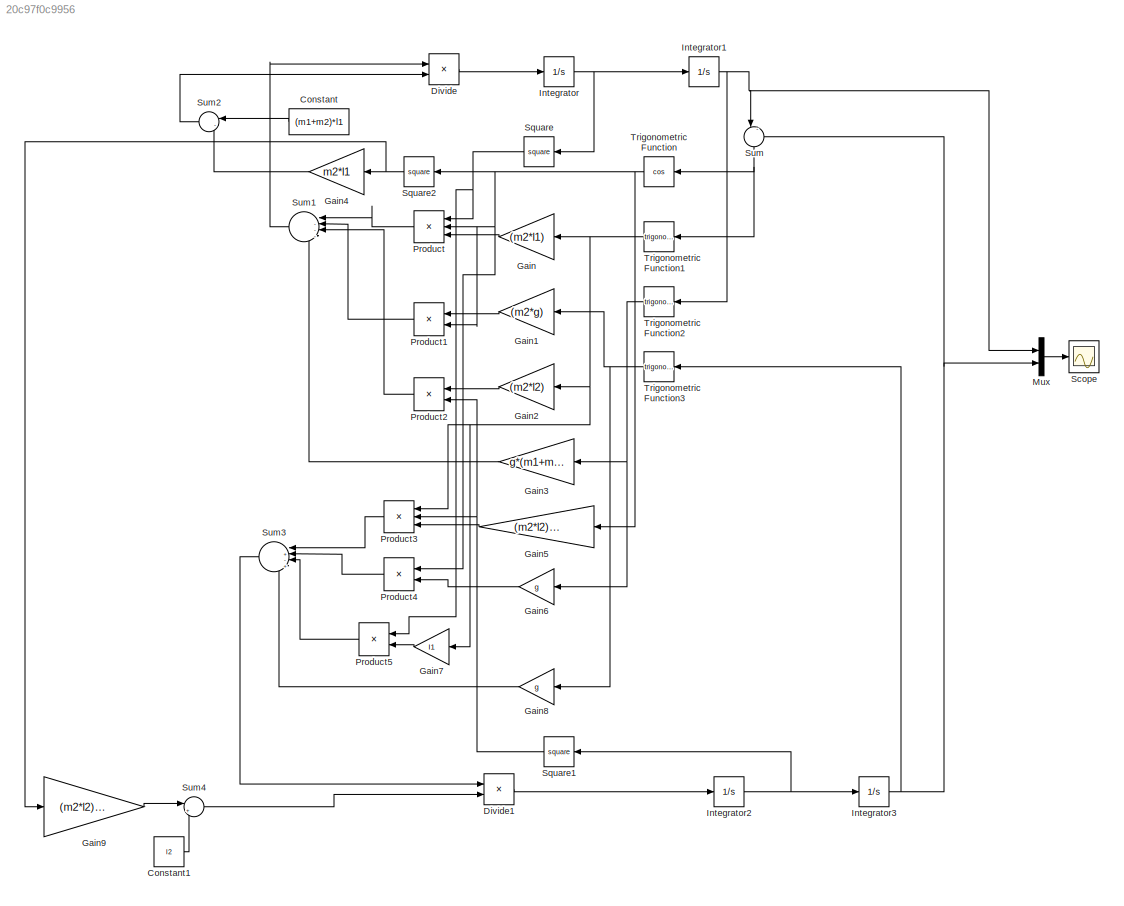
MODEL slx_20c97f0c9956
KIND model
CONFIG AbsTol = auto
CONFIG EnableMultiTasking = off
CONFIG FixedStep = auto
CONFIG MaxStep = auto
CONFIG MinStep = auto
CONFIG RelTol = 1e-3
CONFIG SampleTimeConstraint = Unconstrained
CONFIG SolverName = ode23
CONFIG StartTime = 0.0
CONFIG StopTime = 50
BLOCK [Constant] Constant
  NameLocation = top
  Value = (m1+m2)*l1
BLOCK [Constant] Constant1
  Value = l2
BLOCK [Product] Divide
  Inputs = */
BLOCK [Product] Divide1
  Inputs = */
BLOCK [Gain] Gain
  Gain = (m2*l1)
  NameLocation = top
BLOCK [Gain] Gain1
  Gain = (m2*g)
  NameLocation = top
BLOCK [Gain] Gain2
  Gain = (m2*l2)
  NameLocation = top
BLOCK [Gain] Gain3
  Gain = g*(m1+m2)
  NameLocation = top
BLOCK [Gain] Gain4
  Gain = m2*l1
  NameLocation = top
BLOCK [Gain] Gain5
  Gain = (m2*l2)/(m1+m2)
  NameLocation = top
BLOCK [Gain] Gain6
  Gain = g
  NameLocation = top
BLOCK [Gain] Gain7
  Gain = l1
  NameLocation = top
BLOCK [Gain] Gain8
  Gain = g
  NameLocation = top
BLOCK [Gain] Gain9
  Gain = (m2*l2)/(m1+m2)
BLOCK [Integrator] Integrator
BLOCK [Integrator] Integrator1
BLOCK [Integrator] Integrator2
BLOCK [Integrator] Integrator3
  InitialCondition = 0.610865
BLOCK [Mux] Mux
  DisplayOption = bar
  Inputs = 2
BLOCK [Product] Product
  Inputs = 3
  NameLocation = top
BLOCK [Product] Product1
  NameLocation = top
BLOCK [Product] Product2
  NameLocation = top
BLOCK [Product] Product3
  Inputs = 3
  NameLocation = top
BLOCK [Product] Product4
  NameLocation = top
BLOCK [Product] Product5
  NameLocation = top
BLOCK [Scope] Scope
  Floating = off
  NumInputPorts = 1
  ScopeSpecificationString = Simulink.scopes.TimeScopeBlockCfg('CurrentConfiguration', extmgr.ConfigurationSet(extmgr.Configuration('Core','General UI',true),extmgr.Configuration('Core','Source UI',true),extmgr.Configuration('Sources','WiredSimulink',true),extmgr.Configuration('Visuals','Time Domain',true,'SerializedDisplays',{struct('MinYLimReal','-0.73519','MaxYLimReal','0.76043','YLabelReal','','MinYLimMag','0.00000','MaxY...<+1378ch>
BLOCK [Math] Square
  NameLocation = top
  Operator = square
BLOCK [Math] Square1
  NameLocation = top
  Operator = square
BLOCK [Math] Square2
  NameLocation = top
  Operator = square
BLOCK [Sum] Sum
  Inputs = |-+
  NameLocation = left
BLOCK [Sum] Sum1
  Inputs = |---+
  NameLocation = top
BLOCK [Sum] Sum2
  Inputs = |-+
  NameLocation = top
BLOCK [Sum] Sum3
  Inputs = |+-++
  NameLocation = top
BLOCK [Sum] Sum4
  Inputs = |+-
BLOCK [Trigonometry] Trigonometric Function
  NameLocation = top
  Operator = cos
BLOCK [Trigonometry] Trigonometric Function1
  NameLocation = top
BLOCK [Trigonometry] Trigonometric Function2
  NameLocation = top
BLOCK [Trigonometry] Trigonometric Function3
  NameLocation = top
LINE Constant1:1 -> Sum4:2
LINE Constant:1 -> Sum2:1
LINE Divide1:1 -> Integrator2:1
LINE Divide:1 -> Integrator:1
LINE Gain1:1 -> Product1:1
LINE Gain2:1 -> Product2:1
LINE Gain3:1 -> Sum1:4
LINE Gain4:1 -> Sum2:2
LINE Gain5:1 -> Product3:3
LINE Gain6:1 -> Product4:2
LINE Gain7:1 -> Product5:2
LINE Gain8:1 -> Sum3:4
LINE Gain9:1 -> Sum4:1
LINE Gain:1 -> Product:3
NET Integrator1:1 -> Mux:1, Sum:1, Trigonometric Function2:1
NET Integrator2:1 -> Integrator3:1, Square1:1
NET Integrator3:1 -> Mux:2, Sum:2, Trigonometric Function3:1
NET Integrator:1 -> Integrator1:1, Square:1
LINE Mux:1 -> Scope:1
LINE Product1:1 -> Sum1:2
LINE Product2:1 -> Sum1:3
LINE Product3:1 -> Sum3:1
LINE Product4:1 -> Sum3:2
LINE Product5:1 -> Sum3:3
LINE Product:1 -> Sum1:1
NET Square1:1 -> Product2:2, Product3:2
NET Square2:1 -> Gain4:1, Gain9:1
NET Square:1 -> Product5:1, Product:1
LINE Sum1:1 -> Divide:1
LINE Sum2:1 -> Divide:2
LINE Sum3:1 -> Divide1:1
LINE Sum4:1 -> Divide1:2
NET Sum:1 -> Trigonometric Function1:1, Trigonometric Function:1
NET Trigonometric Function1:1 -> Gain2:1, Gain7:1, Gain:1, Product3:1
NET Trigonometric Function2:1 -> Gain3:1, Gain6:1
NET Trigonometric Function3:1 -> Gain1:1, Gain8:1
NET Trigonometric Function:1 -> Gain5:1, Product1:2, Product4:1, Product:2, Square2:1
note: NET lines group one-source signal fan-out (src -> all destinations, sorted); 1:1 wires keep LINE
